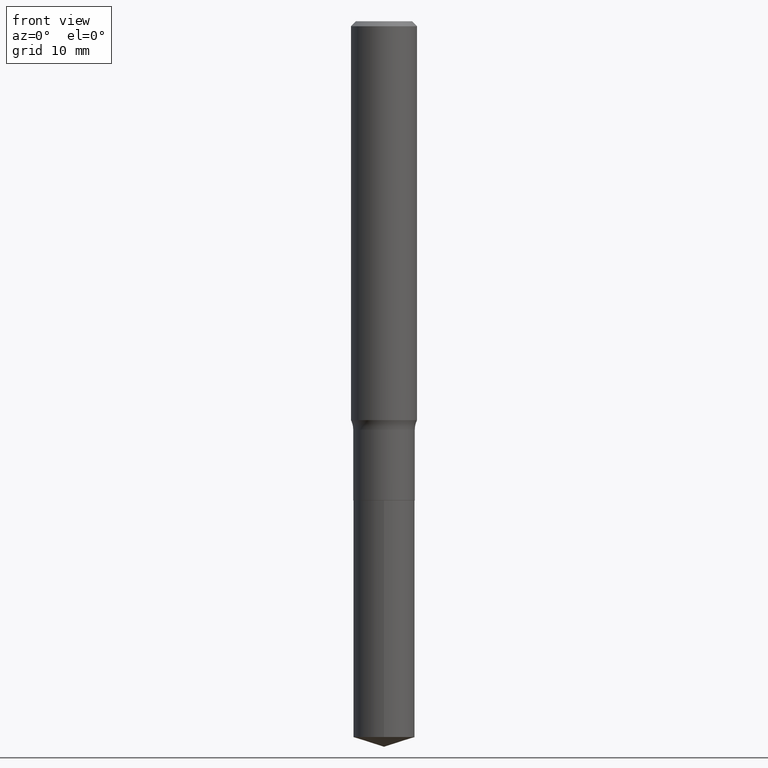
[diagram: clean part render]
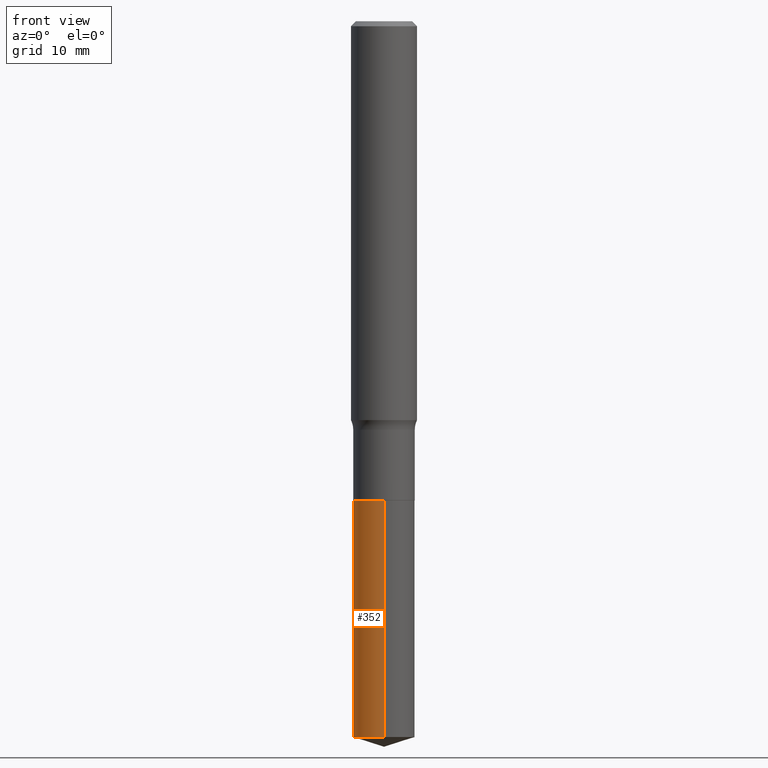
[diagram: same view with one face highlighted and labeled with its STEP entity id]
A machine part, front view. The second image highlights one B-rep face of the part: STEP entity #352.
In plain terms, the highlighted cylindrical surface (edge-blend (fillet) strip) has radius 2.8003 mm, axis along (-0, 0, 1).
Its self-contained STEP definition (entity closure, byte-faithful):
#25 = DIRECTION ( 'NONE',  ( -2.445657340504628845E-29, 3.491211346966926000E-15, 1.000000000000000000 ) ) ;
#43 = DIRECTION ( 'NONE',  ( -2.445657340504628845E-29, 3.491211346966925605E-15, 1.000000000000000000 ) ) ;
#45 = CYLINDRICAL_SURFACE ( 'NONE', #122, 0.1102500000000000008 ) ;
#46 = AXIS2_PLACEMENT_3D ( 'NONE', #232, #43, #146 ) ;
#76 = CARTESIAN_POINT ( 'NONE',  ( 4.197647205816786480E-29, -5.993127718124259199E-15, -1.716499999999999915 ) ) ;
#89 = ORIENTED_EDGE ( 'NONE', *, *, #137, .T. ) ;
#95 = DIRECTION ( 'NONE',  ( -2.445657340504628845E-29, 3.491211346966925605E-15, 1.000000000000000000 ) ) ;
#102 = VECTOR ( 'NONE', #25, 39.37007874015748143 ) ;
#110 = DIRECTION ( 'NONE',  ( -2.445657340504628845E-29, 3.491211346966925605E-15, 1.000000000000000000 ) ) ;
#118 = FACE_OUTER_BOUND ( 'NONE', #398, .T. ) ;
#122 = AXIS2_PLACEMENT_3D ( 'NONE', #76, #110, #148 ) ;
#137 = EDGE_CURVE ( 'NONE', #330, #172, #373, .T. ) ;
#146 = DIRECTION ( 'NONE',  ( -6.982962677686266711E-15, -1.000000000000000000, 2.477866660919966807E-15 ) ) ;
#148 = DIRECTION ( 'NONE',  ( -6.982962677686266711E-15, -1.000000000000000000, 2.477866660919966807E-15 ) ) ;
#152 = DIRECTION ( 'NONE',  ( -2.445657340504628845E-29, 3.491211346966926000E-15, 1.000000000000000000 ) ) ;
#172 = VERTEX_POINT ( 'NONE', #247 ) ;
#191 = LINE ( 'NONE', #489, #480 ) ;
#217 = CIRCLE ( 'NONE', #46, 0.1102500000000000008 ) ;
#232 = CARTESIAN_POINT ( 'NONE',  ( 4.197647205816786480E-29, -5.993127718124259199E-15, -1.716499999999999915 ) ) ;
#247 = CARTESIAN_POINT ( 'NONE',  ( -7.698716352148484626E-16, -0.1102500000000089797, -2.563638308526091425 ) ) ;
#273 = VERTEX_POINT ( 'NONE', #437 ) ;
#288 = CARTESIAN_POINT ( 'NONE',  ( 7.833733661755523687E-16, 0.1102499999999940195, -1.716500000000000137 ) ) ;
#290 = VERTEX_POINT ( 'NONE', #328 ) ;
#328 = CARTESIAN_POINT ( 'NONE',  ( -7.698716352148689729E-16, -0.1102500000000059960, -1.716499999999999471 ) ) ;
#330 = VERTEX_POINT ( 'NONE', #453 ) ;
#332 = AXIS2_PLACEMENT_3D ( 'NONE', #400, #95, #468 ) ;
#352 = ADVANCED_FACE ( 'NONE', ( #118 ), #45, .T. ) ;
#356 = ORIENTED_EDGE ( 'NONE', *, *, #465, .F. ) ;
#373 = CIRCLE ( 'NONE', #332, 0.1102500000000000008 ) ;
#390 = ORIENTED_EDGE ( 'NONE', *, *, #401, .T. ) ;
#394 = EDGE_CURVE ( 'NONE', #273, #290, #217, .T. ) ;
#398 = EDGE_LOOP ( 'NONE', ( #356, #89, #390, #403 ) ) ;
#400 = CARTESIAN_POINT ( 'NONE',  ( 6.269457228486298313E-29, -8.950666593300919607E-15, -2.563638308526091869 ) ) ;
#401 = EDGE_CURVE ( 'NONE', #172, #290, #191, .T. ) ;
#403 = ORIENTED_EDGE ( 'NONE', *, *, #394, .F. ) ;
#437 = CARTESIAN_POINT ( 'NONE',  ( 7.833733661755731749E-16, 0.1102499999999940195, -1.716500000000000137 ) ) ;
#453 = CARTESIAN_POINT ( 'NONE',  ( 7.833733661755734707E-16, 0.1102499999999910912, -2.563638308526092757 ) ) ;
#465 = EDGE_CURVE ( 'NONE', #330, #273, #477, .T. ) ;
#468 = DIRECTION ( 'NONE',  ( -6.982962677686266711E-15, -1.000000000000000000, 4.955733321839933614E-15 ) ) ;
#477 = LINE ( 'NONE', #288, #102 ) ;
#480 = VECTOR ( 'NONE', #152, 39.37007874015748143 ) ;
#489 = CARTESIAN_POINT ( 'NONE',  ( -7.698716352148689729E-16, -0.1102500000000059960, -1.716499999999999471 ) ) ;